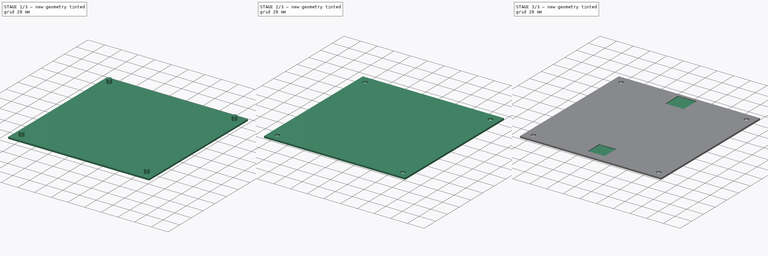
[diagram: build sequence overview — one tinted view per stage of 3, left to right]
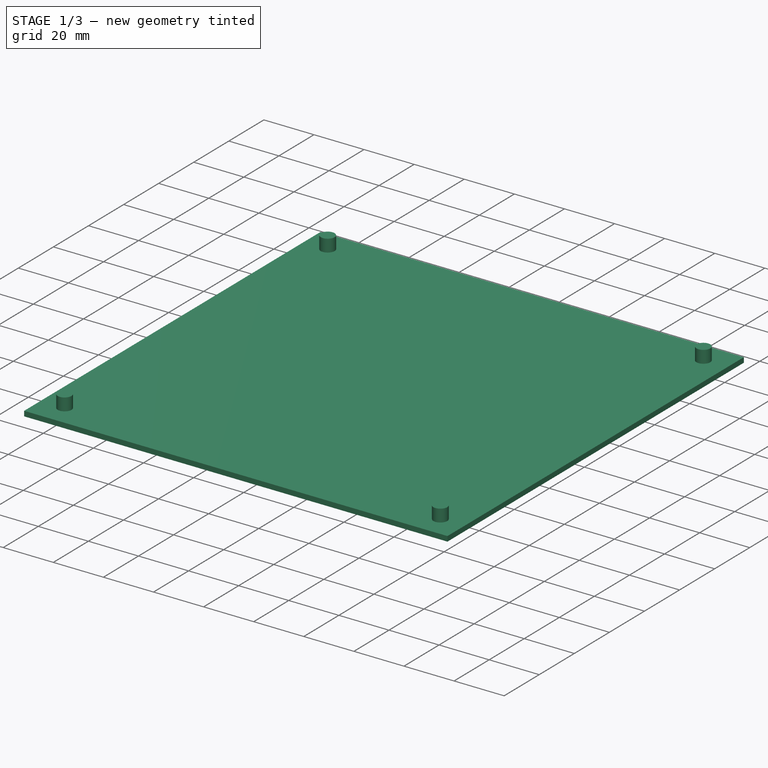
[diagram: stage 1 of 3 — iso view after this stage's code; geometry added in this stage tinted green]
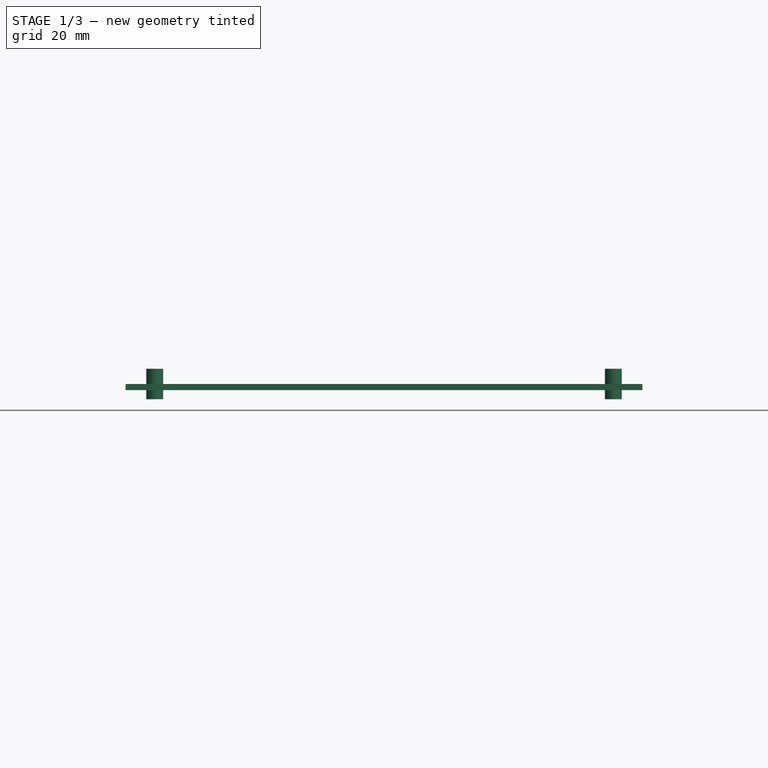
[diagram: stage 1 of 3 — front view after this stage's code; geometry added in this stage tinted green]
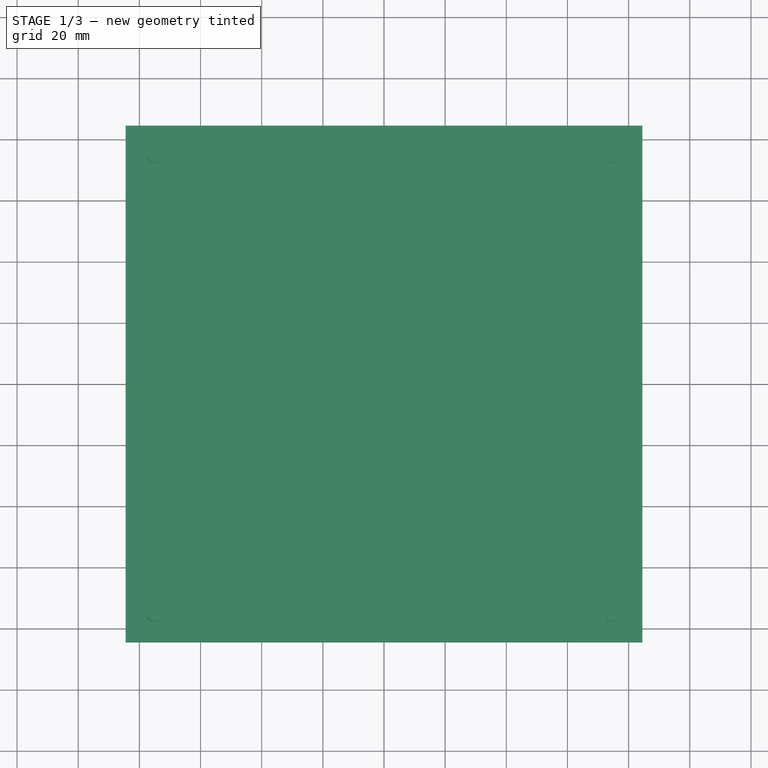
[diagram: stage 1 of 3 — top view after this stage's code; geometry added in this stage tinted green]
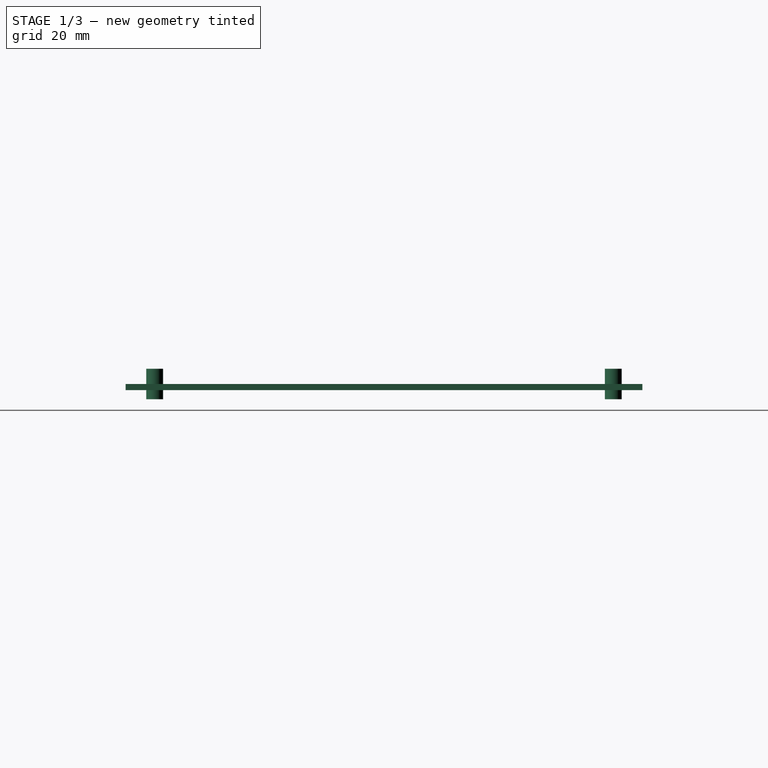
[diagram: stage 1 of 3 — right view after this stage's code; geometry added in this stage tinted green]
FCSTD DOCUMENT  (FreeCAD 1.0R39109 (Git))
Label: Frame75SquareBack
License: All rights reserved
LicenseURL: https://en.wikipedia.org/wiki/All_rights_reserved
objects: Sketcher::SketchObject×3, Part::Extrusion×3, Part::Cut×2
note: 11 computed .brp shape members not serialized (recipe doc carries the construction recipe); baked Part::Feature solids carry a one-line shape summary decoded from their .brp

FEATURE [Sketcher::SketchObject] Sketch  label="BasePanelS"
  ArcFitTolerance = 1e-06
  FullyConstrained = true
  MakeInternals = false
  sketch-geometry (5):
    g0: LineSegment StartX=-84.5 StartY=84.5 StartZ=0 EndX=-84.5 EndY=-84.5 EndZ=0
    g1: LineSegment StartX=-84.5 StartY=-84.5 StartZ=0 EndX=84.5 EndY=-84.5 EndZ=0
    g2: LineSegment StartX=84.5 StartY=-84.5 StartZ=0 EndX=84.5 EndY=84.5 EndZ=0
    g3: LineSegment StartX=84.5 StartY=84.5 StartZ=0 EndX=-84.5 EndY=84.5 EndZ=0
    g4: GeomPoint [constr] X=0 Y=0 Z=0
  constraints (12):
    c: Coincident(g0,g1)
    c: Coincident(g1,g2)
    c: Coincident(g2,g3)
    c: Coincident(g3,g0)
    c: Vertical(g0)
    c: Vertical(g2)
    c: Horizontal(g1)
    c: Horizontal(g3)
    c: Symmetric(g2,g0,g4)
    c: Coincident(g4,g-1)
    c: DistanceX(g3,g3) = 169
    c: DistanceY(g2,g2) = 169
FEATURE [Part::Extrusion] Extrude001  label="BasePanel"
  Base = -> Sketch
  Dir = (0,0,1)
  DirMode = 2
  FaceMakerClass = Part::FaceMakerBullseye
  FaceMakerMode = 3
  LengthFwd = 2
  LengthRev = 0
  Solid = true
  Symmetric = false
FEATURE [Sketcher::SketchObject] Sketch001  label="MountHolesS"
  ArcFitTolerance = 1e-06
  FullyConstrained = true
  MakeInternals = false
  MapMode = 5
  Placement = pos=(0,0,2) rot=(0,0,1;0rad)
  sketch-geometry (4):
    g0: Circle CenterX=-75 CenterY=-75 CenterZ=0 NormalX=0 NormalY=0 NormalZ=1 AngleXU=0 Radius=2.75
    g1: Circle CenterX=75 CenterY=-75 CenterZ=0 NormalX=0 NormalY=0 NormalZ=1 AngleXU=0 Radius=2.75
    g2: Circle CenterX=75 CenterY=75 CenterZ=0 NormalX=0 NormalY=0 NormalZ=1 AngleXU=0 Radius=2.75
    g3: Circle CenterX=-75 CenterY=75 CenterZ=0 NormalX=0 NormalY=0 NormalZ=1 AngleXU=0 Radius=2.75
  constraints (12):
    c: Distance(g0,g-1) = 75
    c: Distance(g0,g-2) = 75
    c: Diameter(g0) = 5.5
    c: Diameter(g3) = 5.5
    c: Diameter(g2) = 5.5
    c: Diameter(g1) = 5.5
    c: Distance(g3,g-1) = 75
    c: Distance(g3,g-2) = 75
    c: Distance(g2,g-2) = 75
    c: Distance(g2,g-1) = 75
    c: Distance(g1,g-2) = 75
    c: Distance(g1,g-1) = 75
FEATURE [Part::Extrusion] Extrude002  label="MountHoles"
  Base = -> Sketch001
  Dir = (0,0,1)
  DirMode = 2
  FaceMakerClass = Part::FaceMakerBullseye
  FaceMakerMode = 3
  LengthFwd = 5
  LengthRev = 5
  Solid = true
  Symmetric = false
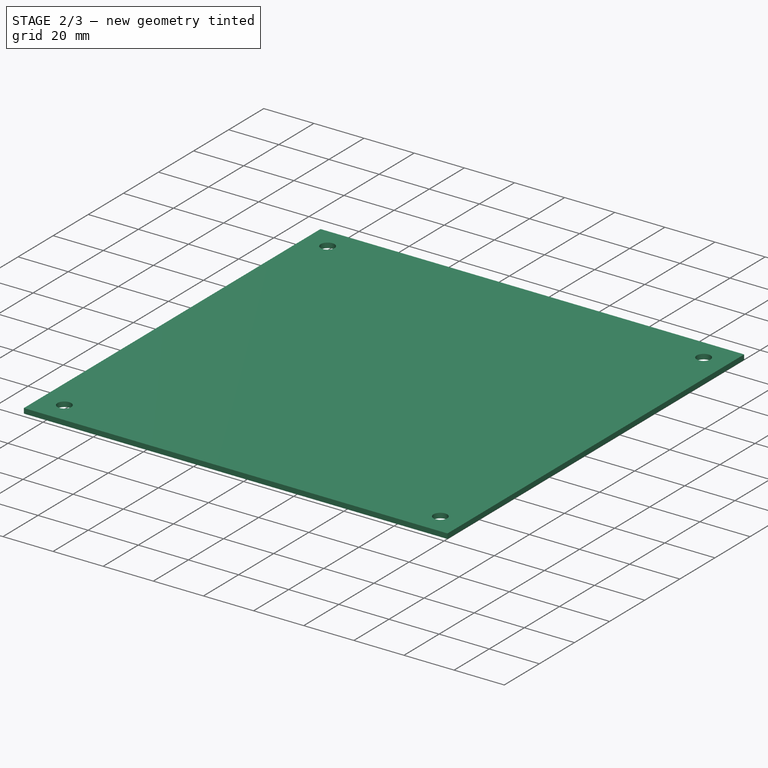
[diagram: stage 2 of 3 — iso view after this stage's code; geometry added in this stage tinted green]
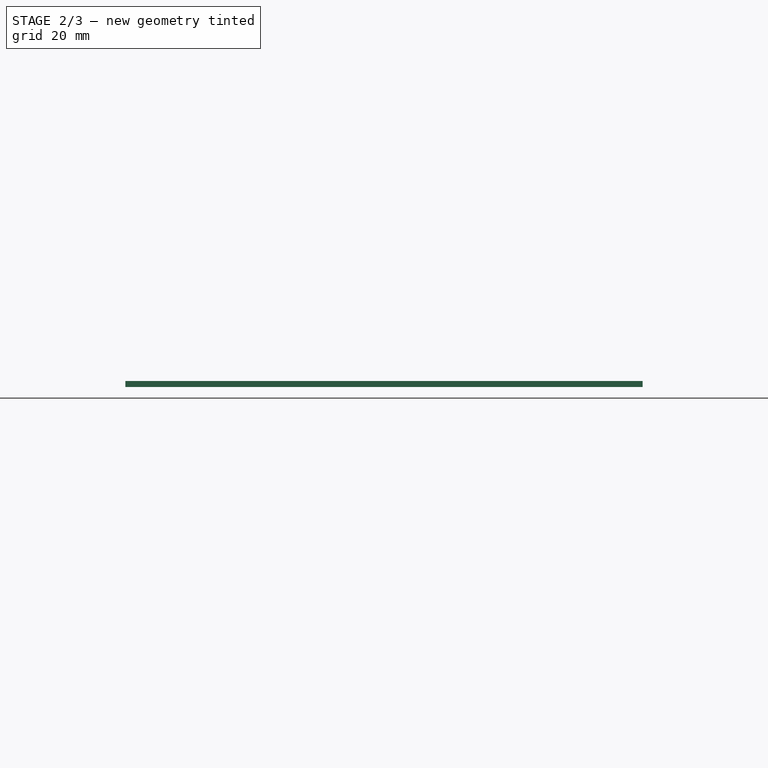
[diagram: stage 2 of 3 — front view after this stage's code; geometry added in this stage tinted green]
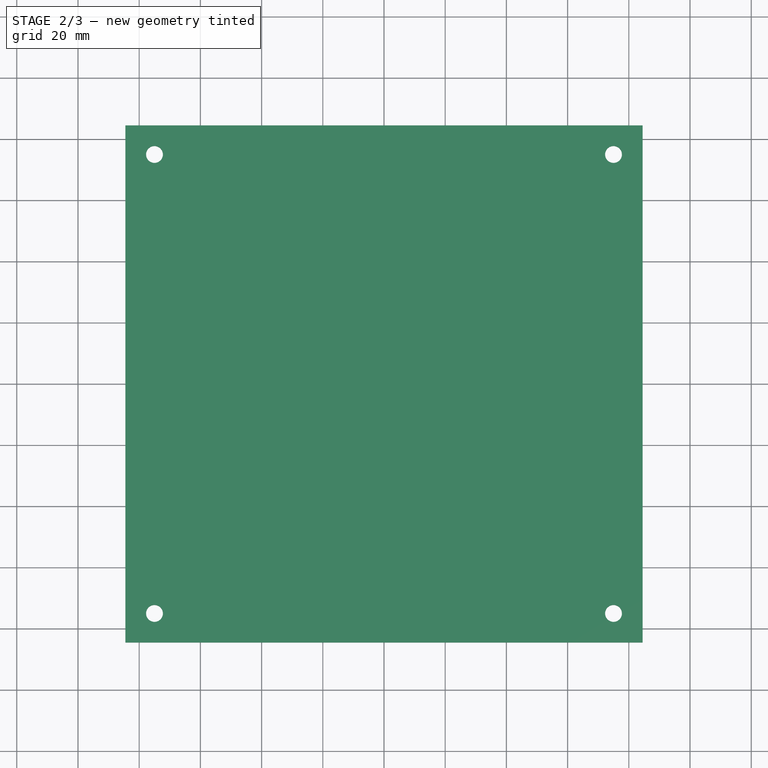
[diagram: stage 2 of 3 — top view after this stage's code; geometry added in this stage tinted green]
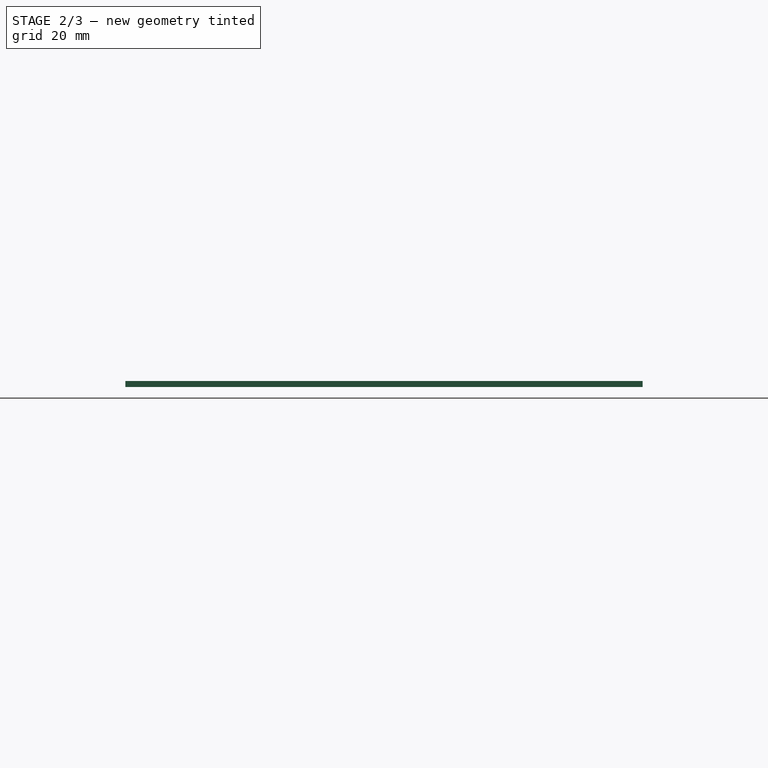
[diagram: stage 2 of 3 — right view after this stage's code; geometry added in this stage tinted green]
FEATURE [Part::Cut] Cut
  Base = -> Extrude001
  Tool = -> Extrude002
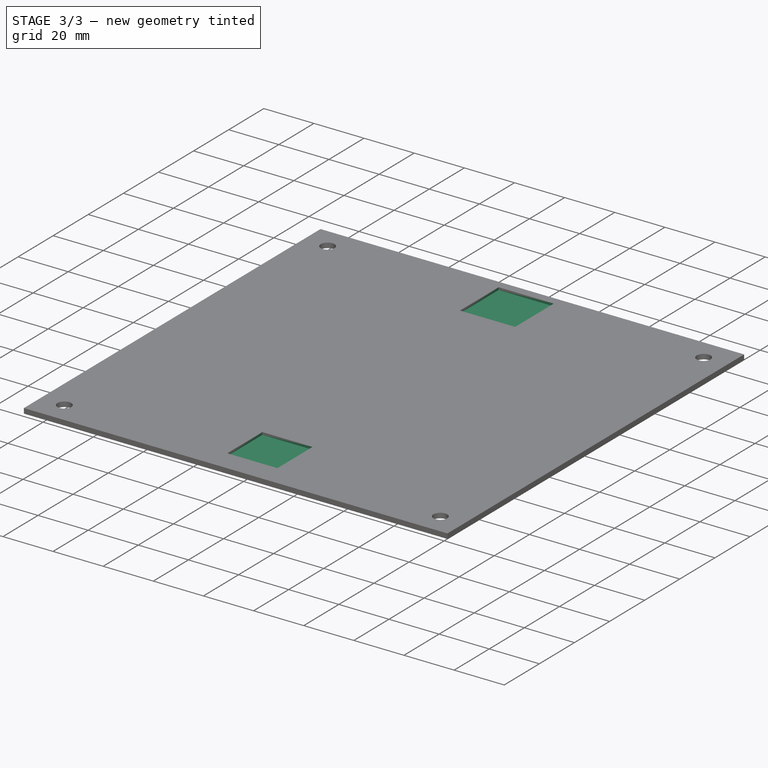
[diagram: stage 3 of 3 — iso view after this stage's code; geometry added in this stage tinted green]
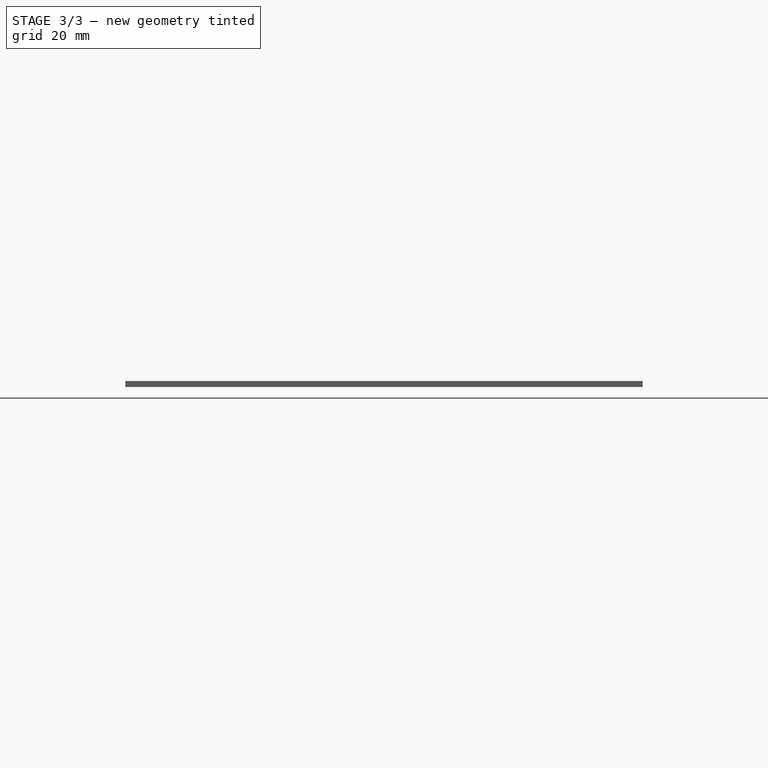
[diagram: stage 3 of 3 — front view after this stage's code; geometry added in this stage tinted green]
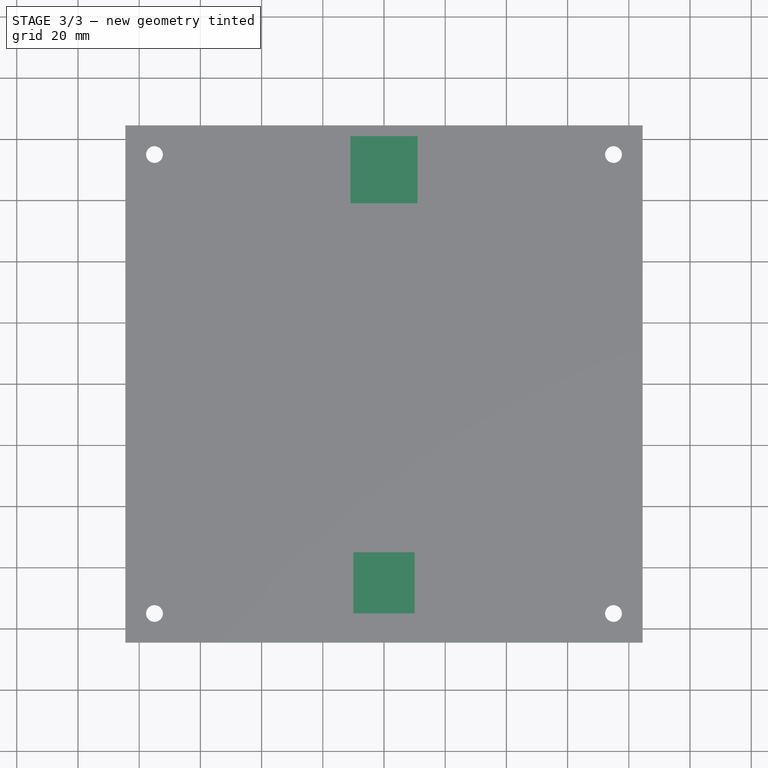
[diagram: stage 3 of 3 — top view after this stage's code; geometry added in this stage tinted green]
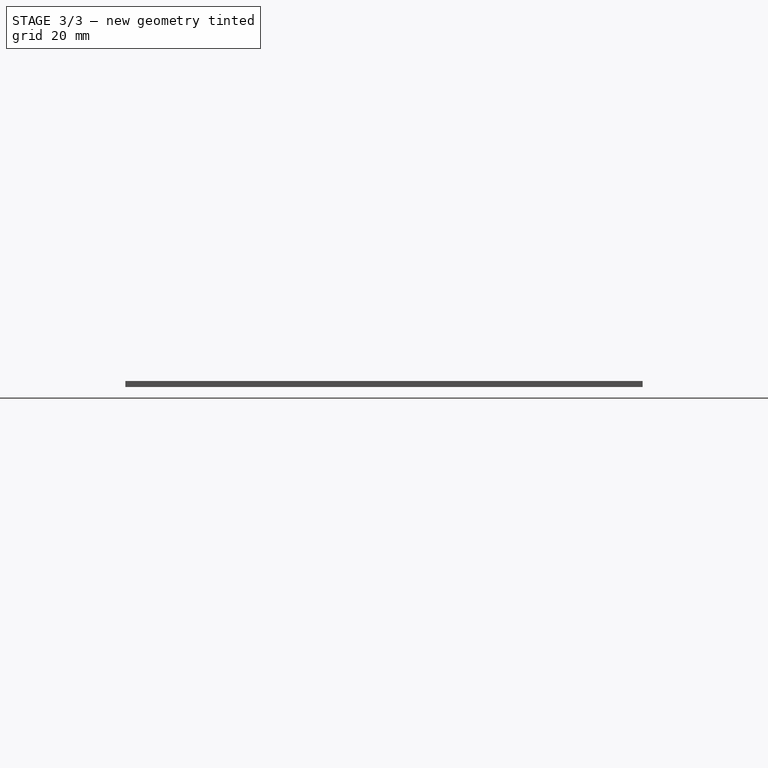
[diagram: stage 3 of 3 — right view after this stage's code; geometry added in this stage tinted green]
FEATURE [Sketcher::SketchObject] Sketch002  label="CutoutsS"
  ArcFitTolerance = 1e-06
  FullyConstrained = true
  MakeInternals = false
  MapMode = 5
  Placement = pos=(0,0,2) rot=(0,0,1;0rad)
  sketch-geometry (10):
    g0: LineSegment StartX=-10 StartY=-55 StartZ=0 EndX=-10 EndY=-75 EndZ=0
    g1: LineSegment StartX=-10 StartY=-75 StartZ=0 EndX=10 EndY=-75 EndZ=0
    g2: LineSegment StartX=10 StartY=-75 StartZ=0 EndX=10 EndY=-55 EndZ=0
    g3: LineSegment StartX=10 StartY=-55 StartZ=0 EndX=-10 EndY=-55 EndZ=0
    g4: GeomPoint [constr] X=0 Y=-65 Z=0
    g5: LineSegment StartX=-11 StartY=81 StartZ=0 EndX=-11 EndY=59 EndZ=0
    g6: LineSegment StartX=-11 StartY=59 StartZ=0 EndX=11 EndY=59 EndZ=0
    g7: LineSegment StartX=11 StartY=59 StartZ=0 EndX=11 EndY=81 EndZ=0
    g8: LineSegment StartX=11 StartY=81 StartZ=0 EndX=-11 EndY=81 EndZ=0
    g9: GeomPoint [constr] X=0 Y=70 Z=0
  constraints (26):
    c: Coincident(g0,g1)
    c: Coincident(g1,g2)
    c: Coincident(g2,g3)
    c: Coincident(g3,g0)
    c: Vertical(g0)
    c: Vertical(g2)
    c: Horizontal(g1)
    c: Horizontal(g3)
    c: Symmetric(g2,g0,g4)
    c: PointOnObject(g4,g-2)
    c: DistanceY(g2,g2) = 20
    c: DistanceX(g1,g1) = 20
    c: Distance(g4,g-1) = 65
    c: Coincident(g5,g6)
    c: Coincident(g6,g7)
    c: Coincident(g7,g8)
    c: Coincident(g8,g5)
    c: Vertical(g5)
    c: Vertical(g7)
    c: Horizontal(g6)
    c: Horizontal(g8)
    c: Symmetric(g7,g5,g9)
    c: PointOnObject(g9,g-2)
    c: DistanceX(g8,g8) = 22
    c: DistanceY(g7,g7) = 22
    c: Distance(g9,g-1) = 70
FEATURE [Part::Extrusion] Extrude  label="Cutouts"
  Base = -> Sketch002
  Dir = (0,0,1)
  DirMode = 2
  FaceMakerClass = Part::FaceMakerBullseye
  FaceMakerMode = 3
  LengthFwd = 1
  LengthRev = 1
  Solid = true
  Symmetric = false
FEATURE [Part::Cut] Cut001
  Base = -> Cut
  Tool = -> Extrude
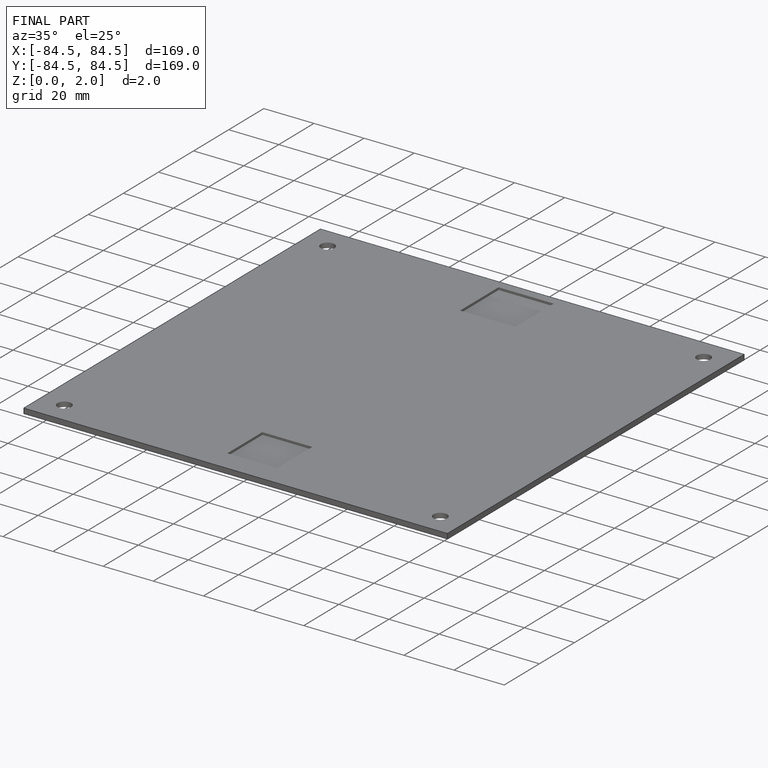
[diagram: finished part — iso view with bounding-box wireframe]
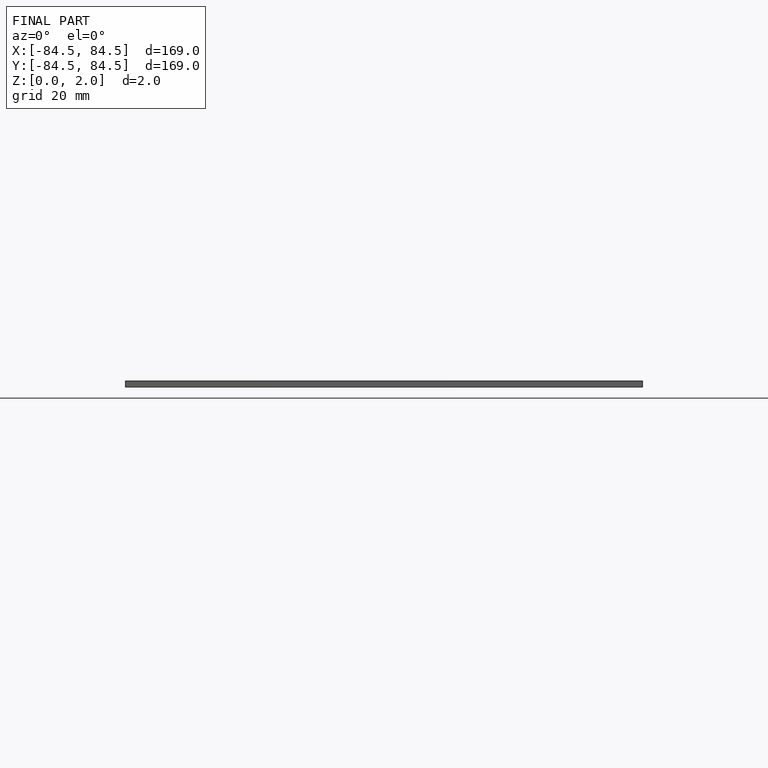
[diagram: finished part — front view with bounding-box wireframe]
